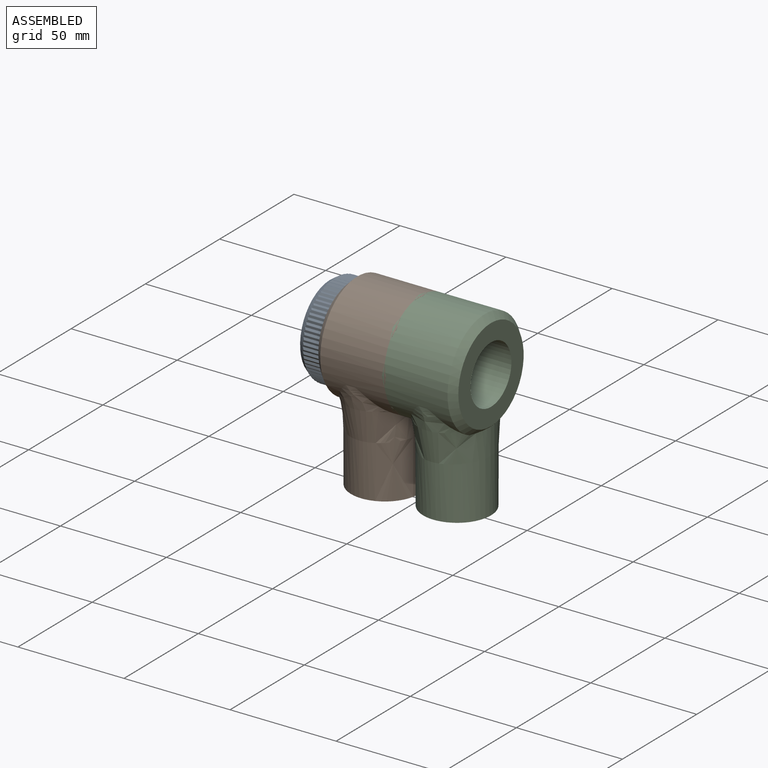
[diagram: assembled view]
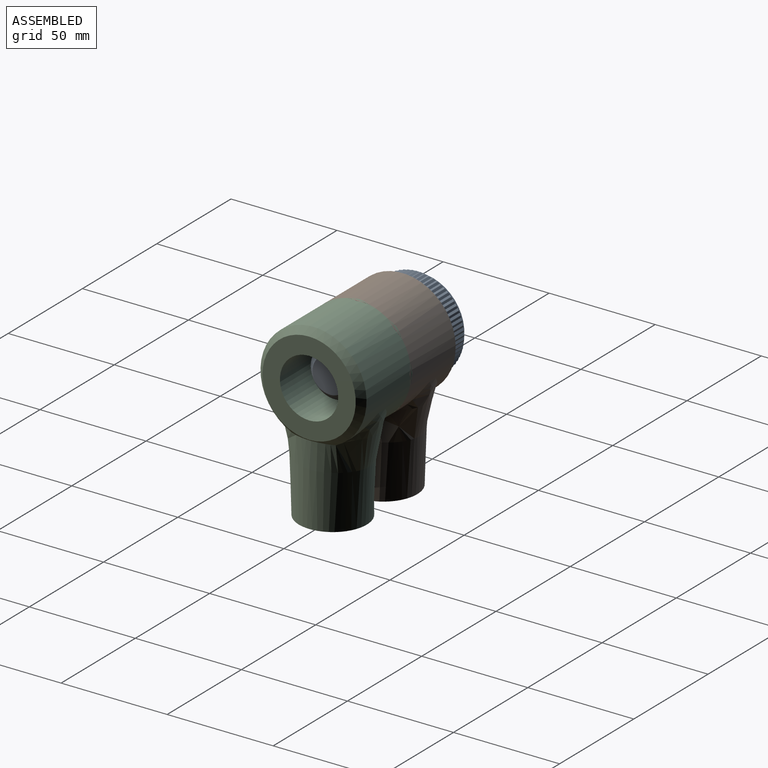
[diagram: assembled view, second angle]
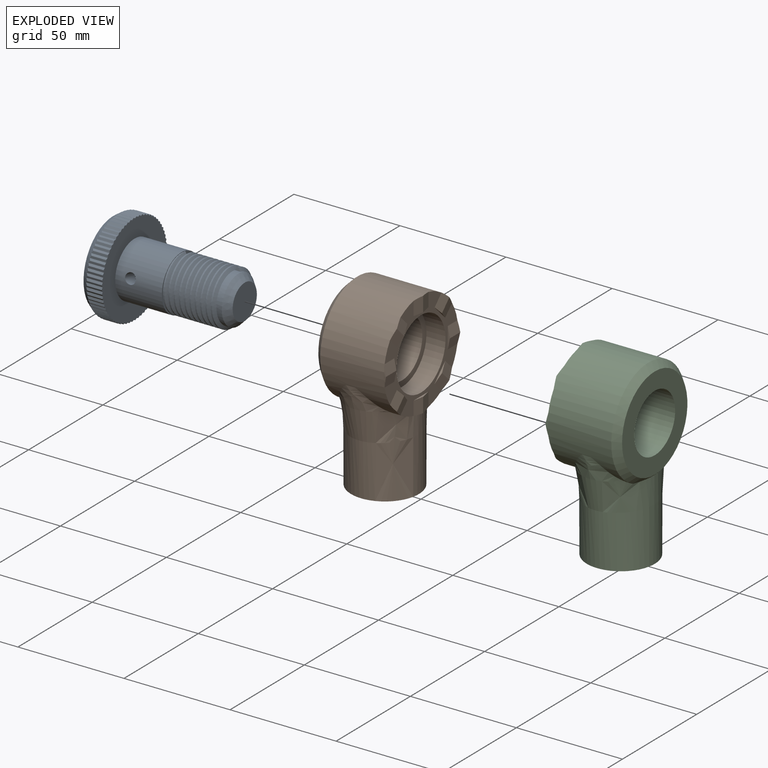
[diagram: exploded view]
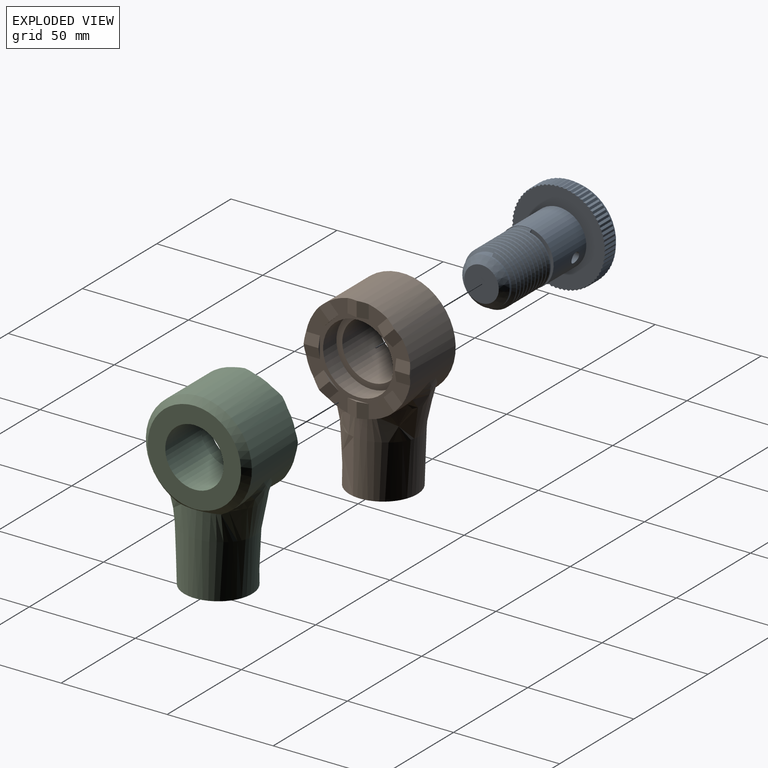
[diagram: exploded view, second angle]
ASSEMBLY  parts=3 mates=2
PART A: 232 faces, bbox 63x45x45 mm
  f0: cylinder r=13mm len=26mm, axis (1,0,0), area 1757.7mm2, adj f223,f224,f230,f231
  f1: cylinder r=6.25mm len=24mm, axis (1,0,0), area 902.3mm2, adj f228,f229,f230,f231
  f2: plane 1.59x1.25mm, normal (0,0,1), area 1.2mm2, adj f4,f6,f17,f224
  f3: bspline ~30.76x26.64mm, area 1329.7mm2, adj f4,f5,f8,f9,f10,f11,f12,f13
  f4: cylinder r=12.75mm len=25.5mm, axis (-1,0,0), area 454mm2, adj f2,f3,f5,f6,f224
  f5: plane 2.49x1.59mm, normal (0,0,-1), area 2.5mm2, adj f3,f4,f6,f7
  f6: bspline ~30.76x26.64mm, area 1376.2mm2, adj f2,f4,f5,f7,f8,f9,f10,f11
  f7: cylinder r=11.16mm len=22.33mm, axis (1,0,0), area 140.6mm2, adj f5,f6,f8,f19
  f8: cylinder r=11.16mm len=22.33mm, axis (1,0,0), area 0.7mm2, adj f3,f6,f7,f9
  f9: cylinder r=11.16mm len=22.33mm, axis (1,0,0), area 0.7mm2, adj f3,f6,f8,f10
  f10: cylinder r=11.16mm len=22.33mm, axis (1,0,0), area 0.8mm2, adj f3,f6,f9,f11
  f11: cylinder r=11.16mm len=22.33mm, axis (1,0,0), area 0.7mm2, adj f3,f6,f10,f12
  f12: cylinder r=11.16mm len=22.33mm, axis (1,0,0), area 0.7mm2, adj f3,f6,f11,f13
  f13: cylinder r=11.16mm len=22.33mm, axis (1,0,0), area 0.6mm2, adj f3,f6,f12,f14
  f14: cylinder r=11.16mm len=22.33mm, axis (1,0,0), area 0.8mm2, adj f3,f6,f13,f15
  f15: cylinder r=11.16mm len=22.33mm, axis (1,0,0), area 0.7mm2, adj f3,f6,f14,f16
  f16: cylinder r=11.16mm len=22.33mm, axis (1,0,0), area 0.7mm2, adj f3,f6,f15,f17
  f17: cylinder r=11.16mm len=22.33mm, axis (1,0,0), area 22.1mm2, adj f2,f3,f16,f224
  f18: plane 16.33x16.33mm, normal (-1,0,0), area 209.4mm2, adj f19
  f19: cone r=11.16mm half-angle=45deg, axis (1,0,0), area 257.6mm2, adj f7,f18
  f20: cylinder r=22mm len=7mm, axis (-1,0,0), area 0.2mm2, adj f21,f223,f225,f227
  f21: plane 7.81x0.97mm, normal (0,0.85,0.53), area 8.3mm2, adj f20,f22,f223,f225
  f22: plane 7.81x1.07mm, normal (0,0.93,-0.36), area 8.3mm2, adj f21,f23,f223,f225
  f23: cylinder r=22mm len=7mm, axis (-1,0,0), area 0.2mm2, adj f22,f24,f223,f225
  f24: plane 7.81x0.91mm, normal (0,0.8,0.6), area 8.3mm2, adj f23,f25,f223,f225
  f25: plane 7.81x1.1mm, normal (0,0.96,-0.28), area 8.3mm2, adj f24,f26,f223,f225
  f26: cylinder r=22mm len=7mm, axis (-1,0,0), area 0.2mm2, adj f25,f27,f223,f225
  f27: plane 7.81x0.85mm, normal (0,0.74,0.67), area 8.3mm2, adj f26,f28,f223,f225
  f28: plane 7.81x1.12mm, normal (0,0.98,-0.19), area 8.3mm2, adj f27,f29,f223,f225
  f29: cylinder r=22mm len=7mm, axis (-1,0,0), area 0.2mm2, adj f28,f30,f223,f225
  f30: plane 7.81x0.85mm, normal (0,0.67,0.74), area 8.3mm2, adj f29,f31,f223,f225
  f31: plane 7.81x1.14mm, normal (0,1,-0.09), area 8.3mm2, adj f30,f32,f223,f225
  f32: cylinder r=22mm len=7mm, axis (-1,0,0), area 0.2mm2, adj f31,f33,f223,f225
  f33: plane 7.81x0.92mm, normal (0,0.6,0.8), area 8.3mm2, adj f32,f34,f223,f225
  f34: plane 7.81x1.14mm, normal (0,1,0), area 8.3mm2, adj f33,f35,f223,f225
  f35: cylinder r=22mm len=7mm, axis (-1,0,0), area 0.2mm2, adj f34,f36,f223,f225
  f36: plane 7.81x0.98mm, normal (0,0.53,0.85), area 8.3mm2, adj f35,f37,f223,f225
  f37: plane 7.81x1.14mm, normal (0,1,0.09), area 8.3mm2, adj f36,f38,f223,f225
  f38: cylinder r=22mm len=7mm, axis (-1,0,0), area 0.2mm2, adj f37,f39,f223,f225
  f39: plane 7.81x1.03mm, normal (0,0.44,0.9), area 8.3mm2, adj f38,f40,f223,f225
  f40: plane 7.81x1.12mm, normal (0,0.98,0.18), area 8.3mm2, adj f39,f41,f223,f225
  f41: cylinder r=22mm len=7mm, axis (-1,0,0), area 0.2mm2, adj f40,f42,f223,f225
  f42: plane 7.81x1.07mm, normal (0,0.36,0.93), area 8.3mm2, adj f41,f43,f223,f225
  f43: plane 7.81x1.1mm, normal (0,0.96,0.27), area 8.3mm2, adj f42,f44,f223,f225
  f44: cylinder r=22mm len=7mm, axis (-1,0,0), area 0.2mm2, adj f43,f45,f223,f225
  f45: plane 7.81x1.1mm, normal (0,0.27,0.96), area 8.3mm2, adj f44,f46,f223,f225
  f46: plane 7.81x1.07mm, normal (0,0.93,0.36), area 8.3mm2, adj f45,f47,f223,f225
  f47: cylinder r=22mm len=7mm, axis (-1,0,0), area 0.2mm2, adj f46,f48,f223,f225
  f48: plane 7.81x1.12mm, normal (0,0.18,0.98), area 8.3mm2, adj f47,f49,f223,f225
  f49: plane 7.81x1.03mm, normal (0,0.9,0.44), area 8.3mm2, adj f48,f50,f223,f225
  f50: cylinder r=22mm len=7mm, axis (-1,0,0), area 0.2mm2, adj f49,f51,f223,f225
  f51: plane 7.81x1.14mm, normal (0,0.09,1), area 8.3mm2, adj f50,f52,f223,f225
  f52: plane 7.81x0.98mm, normal (0,0.85,0.53), area 8.3mm2, adj f51,f53,f223,f225
  f53: cylinder r=22mm len=7mm, axis (-1,0,0), area 0.2mm2, adj f52,f54,f223,f225
  f54: plane 7.81x1.14mm, normal (0,0,1), area 8.3mm2, adj f53,f55,f223,f225
  f55: plane 7.81x0.92mm, normal (0,0.8,0.6), area 8.3mm2, adj f54,f56,f223,f225
  f56: cylinder r=22mm len=7mm, axis (-1,0,0), area 0.2mm2, adj f55,f57,f223,f225
  f57: plane 7.81x1.14mm, normal (0,-0.09,1), area 8.3mm2, adj f56,f58,f223,f225
  f58: plane 7.81x0.85mm, normal (0,0.74,0.67), area 8.3mm2, adj f57,f59,f223,f225
  f59: cylinder r=22mm len=7mm, axis (-1,0,0), area 0.2mm2, adj f58,f60,f223,f225
  f60: plane 7.81x1.12mm, normal (0,-0.19,0.98), area 8.3mm2, adj f59,f61,f223,f225
  f61: plane 7.81x0.85mm, normal (0,0.67,0.74), area 8.3mm2, adj f60,f62,f223,f225
  f62: cylinder r=22mm len=7mm, axis (-1,0,0), area 0.2mm2, adj f61,f63,f223,f225
  f63: plane 7.81x1.1mm, normal (0,-0.28,0.96), area 8.3mm2, adj f62,f64,f223,f225
  f64: plane 7.81x0.91mm, normal (0,0.6,0.8), area 8.3mm2, adj f63,f65,f223,f225
  f65: cylinder r=22mm len=7mm, axis (-1,0,0), area 0.2mm2, adj f64,f66,f223,f225
  f66: plane 7.81x1.07mm, normal (0,-0.36,0.93), area 8.3mm2, adj f65,f67,f223,f225
  f67: plane 7.81x0.97mm, normal (0,0.53,0.85), area 8.3mm2, adj f66,f68,f223,f225
  f68: cylinder r=22mm len=7mm, axis (-1,0,0), area 0.2mm2, adj f67,f69,f223,f225
  f69: plane 7.81x1.02mm, normal (0,-0.45,0.89), area 8.3mm2, adj f68,f70,f223,f225
  f70: plane 7.81x1.02mm, normal (0,0.45,0.89), area 8.3mm2, adj f69,f71,f223,f225
  f71: cylinder r=22mm len=7mm, axis (-1,0,0), area 0.2mm2, adj f70,f72,f223,f225
  f72: plane 7.81x0.97mm, normal (0,-0.53,0.85), area 8.3mm2, adj f71,f73,f223,f225
  f73: plane 7.81x1.07mm, normal (0,0.36,0.93), area 8.3mm2, adj f72,f74,f223,f225
  f74: cylinder r=22mm len=7mm, axis (-1,0,0), area 0.2mm2, adj f73,f75,f223,f225
  f75: plane 7.81x0.91mm, normal (0,-0.6,0.8), area 8.3mm2, adj f74,f76,f223,f225
  f76: plane 7.81x1.1mm, normal (0,0.28,0.96), area 8.3mm2, adj f75,f77,f223,f225
  f77: cylinder r=22mm len=7mm, axis (-1,0,0), area 0.2mm2, adj f76,f78,f223,f225
  f78: plane 7.81x0.85mm, normal (0,-0.67,0.74), area 8.3mm2, adj f77,f79,f223,f225
  f79: plane 7.81x1.12mm, normal (0,0.19,0.98), area 8.3mm2, adj f78,f80,f223,f225
  f80: cylinder r=22mm len=7mm, axis (-1,0,0), area 0.2mm2, adj f79,f81,f223,f225
  f81: plane 7.81x0.85mm, normal (0,-0.74,0.67), area 8.3mm2, adj f80,f82,f223,f225
  f82: plane 7.81x1.14mm, normal (0,0.09,1), area 8.3mm2, adj f81,f83,f223,f225
  f83: cylinder r=22mm len=7mm, axis (-1,0,0), area 0.2mm2, adj f82,f84,f223,f225
  f84: plane 7.81x0.92mm, normal (0,-0.8,0.6), area 8.3mm2, adj f83,f85,f223,f225
  f85: plane 7.81x1.14mm, normal (0,0,1), area 8.3mm2, adj f84,f86,f223,f225
  f86: cylinder r=22mm len=7mm, axis (-1,0,0), area 0.2mm2, adj f85,f87,f223,f225
  f87: plane 7.81x0.98mm, normal (0,-0.85,0.53), area 8.3mm2, adj f86,f88,f223,f225
  f88: plane 7.81x1.14mm, normal (0,-0.09,1), area 8.3mm2, adj f87,f89,f223,f225
  f89: cylinder r=22mm len=7mm, axis (-1,0,0), area 0.2mm2, adj f88,f90,f223,f225
  f90: plane 7.81x1.03mm, normal (0,-0.9,0.44), area 8.3mm2, adj f89,f91,f223,f225
  f91: plane 7.81x1.12mm, normal (0,-0.18,0.98), area 8.3mm2, adj f90,f92,f223,f225
  f92: cylinder r=22mm len=7mm, axis (-1,0,0), area 0.2mm2, adj f91,f93,f223,f225
  f93: plane 7.81x1.07mm, normal (0,-0.93,0.36), area 8.3mm2, adj f92,f94,f223,f225
  f94: plane 7.81x1.1mm, normal (0,-0.27,0.96), area 8.3mm2, adj f93,f95,f223,f225
  f95: cylinder r=22mm len=7mm, axis (-1,0,0), area 0.2mm2, adj f94,f96,f223,f225
  f96: plane 7.81x1.1mm, normal (0,-0.96,0.27), area 8.3mm2, adj f95,f97,f223,f225
  f97: plane 7.81x1.07mm, normal (0,-0.36,0.93), area 8.3mm2, adj f96,f98,f223,f225
  f98: cylinder r=22mm len=7mm, axis (-1,0,0), area 0.2mm2, adj f97,f99,f223,f225
  f99: plane 7.81x1.12mm, normal (0,-0.98,0.18), area 8.3mm2, adj f98,f100,f223,f225
  f100: plane 7.81x1.03mm, normal (0,-0.44,0.9), area 8.3mm2, adj f99,f101,f223,f225
  f101: cylinder r=22mm len=7mm, axis (-1,0,0), area 0.2mm2, adj f100,f102,f223,f225
  f102: plane 7.81x1.14mm, normal (0,-1,0.09), area 8.3mm2, adj f101,f103,f223,f225
  f103: plane 7.81x0.98mm, normal (0,-0.53,0.85), area 8.3mm2, adj f102,f104,f223,f225
  f104: cylinder r=22mm len=7mm, axis (-1,0,0), area 0.2mm2, adj f103,f105,f223,f225
  f105: plane 7.81x1.14mm, normal (0,-1,0), area 8.3mm2, adj f104,f106,f223,f225
  f106: plane 7.81x0.92mm, normal (0,-0.6,0.8), area 8.3mm2, adj f105,f107,f223,f225
  f107: cylinder r=22mm len=7mm, axis (-1,0,0), area 0.2mm2, adj f106,f108,f223,f225
  f108: plane 7.81x1.14mm, normal (0,-1,-0.09), area 8.3mm2, adj f107,f109,f223,f225
  f109: plane 7.81x0.85mm, normal (0,-0.67,0.74), area 8.3mm2, adj f108,f110,f223,f225
  f110: cylinder r=22mm len=7mm, axis (-1,0,0), area 0.2mm2, adj f109,f111,f223,f225
  f111: plane 7.81x1.12mm, normal (0,-0.98,-0.19), area 8.3mm2, adj f110,f112,f223,f225
  f112: plane 7.81x0.85mm, normal (0,-0.74,0.67), area 8.3mm2, adj f111,f113,f223,f225
  f113: cylinder r=22mm len=7mm, axis (-1,0,0), area 0.2mm2, adj f112,f114,f223,f225
  f114: plane 7.81x1.1mm, normal (0,-0.96,-0.28), area 8.3mm2, adj f113,f115,f223,f225
  f115: plane 7.81x0.91mm, normal (0,-0.8,0.6), area 8.3mm2, adj f114,f116,f223,f225
  f116: cylinder r=22mm len=7mm, axis (-1,0,0), area 0.2mm2, adj f115,f117,f223,f225
  f117: plane 7.81x1.07mm, normal (0,-0.93,-0.36), area 8.3mm2, adj f116,f118,f223,f225
  f118: plane 7.81x0.97mm, normal (0,-0.85,0.53), area 8.3mm2, adj f117,f119,f223,f225
  f119: cylinder r=22mm len=7mm, axis (-1,0,0), area 0.2mm2, adj f118,f120,f223,f225
  f120: plane 7.81x1.02mm, normal (0,-0.89,-0.45), area 8.3mm2, adj f119,f121,f223,f225
  f121: plane 7.81x1.02mm, normal (0,-0.89,0.45), area 8.3mm2, adj f120,f122,f223,f225
  f122: cylinder r=22mm len=7mm, axis (-1,0,0), area 0.2mm2, adj f121,f123,f223,f225
  f123: plane 7.81x0.97mm, normal (0,-0.85,-0.53), area 8.3mm2, adj f122,f124,f223,f225
  f124: plane 7.81x1.07mm, normal (0,-0.93,0.36), area 8.3mm2, adj f123,f125,f223,f225
  f125: cylinder r=22mm len=7mm, axis (-1,0,0), area 0.2mm2, adj f124,f126,f223,f225
  f126: plane 7.81x0.91mm, normal (0,-0.8,-0.6), area 8.3mm2, adj f125,f127,f223,f225
  f127: plane 7.81x1.1mm, normal (0,-0.96,0.28), area 8.3mm2, adj f126,f128,f223,f225
  f128: cylinder r=22mm len=7mm, axis (-1,0,0), area 0.2mm2, adj f127,f129,f223,f225
  f129: plane 7.81x0.85mm, normal (0,-0.74,-0.67), area 8.3mm2, adj f128,f130,f223,f225
  f130: plane 7.81x1.12mm, normal (0,-0.98,0.19), area 8.3mm2, adj f129,f131,f223,f225
  f131: cylinder r=22mm len=7mm, axis (-1,0,0), area 0.2mm2, adj f130,f132,f223,f225
  f132: plane 7.81x0.85mm, normal (0,-0.67,-0.74), area 8.3mm2, adj f131,f133,f223,f225
  f133: plane 7.81x1.14mm, normal (0,-1,0.09), area 8.3mm2, adj f132,f134,f223,f225
  f134: cylinder r=22mm len=7mm, axis (-1,0,0), area 0.2mm2, adj f133,f135,f223,f225
  f135: plane 7.81x0.92mm, normal (0,-0.6,-0.8), area 8.3mm2, adj f134,f136,f223,f225
  f136: plane 7.81x1.14mm, normal (0,-1,0), area 8.3mm2, adj f135,f137,f223,f225
  f137: cylinder r=22mm len=7mm, axis (-1,0,0), area 0.2mm2, adj f136,f138,f223,f225
  f138: plane 7.81x0.98mm, normal (0,-0.53,-0.85), area 8.3mm2, adj f137,f139,f223,f225
  f139: plane 7.81x1.14mm, normal (0,-1,-0.09), area 8.3mm2, adj f138,f140,f223,f225
  f140: cylinder r=22mm len=7mm, axis (-1,0,0), area 0.2mm2, adj f139,f141,f223,f225
  f141: plane 7.81x1.03mm, normal (0,-0.44,-0.9), area 8.3mm2, adj f140,f142,f223,f225
  f142: plane 7.81x1.12mm, normal (0,-0.98,-0.18), area 8.3mm2, adj f141,f143,f223,f225
  f143: cylinder r=22mm len=7mm, axis (-1,0,0), area 0.2mm2, adj f142,f144,f223,f225
  f144: plane 7.81x1.07mm, normal (0,-0.36,-0.93), area 8.3mm2, adj f143,f145,f223,f225
  f145: plane 7.81x1.1mm, normal (0,-0.96,-0.27), area 8.3mm2, adj f144,f146,f223,f225
  f146: cylinder r=22mm len=7mm, axis (-1,0,0), area 0.2mm2, adj f145,f147,f223,f225
  f147: plane 7.81x1.1mm, normal (0,-0.27,-0.96), area 8.3mm2, adj f146,f148,f223,f225
  f148: plane 7.81x1.07mm, normal (0,-0.93,-0.36), area 8.3mm2, adj f147,f149,f223,f225
  f149: cylinder r=22mm len=7mm, axis (-1,0,0), area 0.2mm2, adj f148,f150,f223,f225
  f150: plane 7.81x1.12mm, normal (0,-0.18,-0.98), area 8.3mm2, adj f149,f151,f223,f225
  f151: plane 7.81x1.03mm, normal (0,-0.9,-0.44), area 8.3mm2, adj f150,f152,f223,f225
  f152: cylinder r=22mm len=7mm, axis (-1,0,0), area 0.2mm2, adj f151,f153,f223,f225
  f153: plane 7.81x1.14mm, normal (0,-0.09,-1), area 8.3mm2, adj f152,f154,f223,f225
  f154: plane 7.81x0.98mm, normal (0,-0.85,-0.53), area 8.3mm2, adj f153,f155,f223,f225
  f155: cylinder r=22mm len=7mm, axis (-1,0,0), area 0.2mm2, adj f154,f156,f223,f225
  f156: plane 7.81x1.14mm, normal (0,0,-1), area 8.3mm2, adj f155,f157,f223,f225
  f157: plane 7.81x0.92mm, normal (0,-0.8,-0.6), area 8.3mm2, adj f156,f158,f223,f225
  f158: cylinder r=22mm len=7mm, axis (-1,0,0), area 0.2mm2, adj f157,f159,f223,f225
  f159: plane 7.81x1.14mm, normal (0,0.09,-1), area 8.3mm2, adj f158,f160,f223,f225
  f160: plane 7.81x0.85mm, normal (0,-0.74,-0.67), area 8.3mm2, adj f159,f161,f223,f225
  f161: cylinder r=22mm len=7mm, axis (-1,0,0), area 0.2mm2, adj f160,f162,f223,f225
  f162: plane 7.81x1.12mm, normal (0,0.19,-0.98), area 8.3mm2, adj f161,f163,f223,f225
  f163: plane 7.81x0.85mm, normal (0,-0.67,-0.74), area 8.3mm2, adj f162,f164,f223,f225
  f164: cylinder r=22mm len=7mm, axis (-1,0,0), area 0.2mm2, adj f163,f165,f223,f225
  f165: plane 7.81x1.1mm, normal (0,0.28,-0.96), area 8.3mm2, adj f164,f166,f223,f225
  f166: plane 7.81x0.91mm, normal (0,-0.6,-0.8), area 8.3mm2, adj f165,f167,f223,f225
  f167: cylinder r=22mm len=7mm, axis (-1,0,0), area 0.2mm2, adj f166,f168,f223,f225
  f168: plane 7.81x1.07mm, normal (0,0.36,-0.93), area 8.3mm2, adj f167,f169,f223,f225
  f169: plane 7.81x0.97mm, normal (0,-0.53,-0.85), area 8.3mm2, adj f168,f170,f223,f225
  f170: cylinder r=22mm len=7mm, axis (-1,0,0), area 0.2mm2, adj f169,f171,f223,f225
  f171: plane 7.81x1.02mm, normal (0,0.45,-0.89), area 8.3mm2, adj f170,f172,f223,f225
  f172: plane 7.81x1.02mm, normal (0,-0.45,-0.89), area 8.3mm2, adj f171,f173,f223,f225
  f173: cylinder r=22mm len=7mm, axis (-1,0,0), area 0.2mm2, adj f172,f174,f223,f225
  f174: plane 7.81x0.97mm, normal (0,0.53,-0.85), area 8.3mm2, adj f173,f175,f223,f225
  f175: plane 7.81x1.07mm, normal (0,-0.36,-0.93), area 8.3mm2, adj f174,f176,f223,f225
  f176: cylinder r=22mm len=7mm, axis (-1,0,0), area 0.2mm2, adj f175,f177,f223,f225
  f177: plane 7.81x0.91mm, normal (0,0.6,-0.8), area 8.3mm2, adj f176,f178,f223,f225
  f178: plane 7.81x1.1mm, normal (0,-0.28,-0.96), area 8.3mm2, adj f177,f179,f223,f225
  f179: cylinder r=22mm len=7mm, axis (-1,0,0), area 0.2mm2, adj f178,f180,f223,f225
  f180: plane 7.81x0.85mm, normal (0,0.67,-0.74), area 8.3mm2, adj f179,f181,f223,f225
  f181: plane 7.81x1.12mm, normal (0,-0.19,-0.98), area 8.3mm2, adj f180,f182,f223,f225
  f182: cylinder r=22mm len=7mm, axis (-1,0,0), area 0.2mm2, adj f181,f183,f223,f225
  f183: plane 7.81x0.85mm, normal (0,0.74,-0.67), area 8.3mm2, adj f182,f184,f223,f225
  f184: plane 7.81x1.14mm, normal (0,-0.09,-1), area 8.3mm2, adj f183,f185,f223,f225
  f185: cylinder r=22mm len=7mm, axis (-1,0,0), area 0.2mm2, adj f184,f186,f223,f225
  f186: plane 7.81x0.92mm, normal (0,0.8,-0.6), area 8.3mm2, adj f185,f187,f223,f225
  f187: plane 7.81x1.14mm, normal (0,0,-1), area 8.3mm2, adj f186,f188,f223,f225
  f188: cylinder r=22mm len=7mm, axis (-1,0,0), area 0.2mm2, adj f187,f189,f223,f225
  f189: plane 7.81x0.98mm, normal (0,0.85,-0.53), area 8.3mm2, adj f188,f190,f223,f225
  f190: plane 7.81x1.14mm, normal (0,0.09,-1), area 8.3mm2, adj f189,f191,f223,f225
  f191: cylinder r=22mm len=7mm, axis (-1,0,0), area 0.2mm2, adj f190,f192,f223,f225
  f192: plane 7.81x1.03mm, normal (0,0.9,-0.44), area 8.3mm2, adj f191,f193,f223,f225
  f193: plane 7.81x1.12mm, normal (0,0.18,-0.98), area 8.3mm2, adj f192,f194,f223,f225
  f194: cylinder r=22mm len=7mm, axis (-1,0,0), area 0.2mm2, adj f193,f195,f223,f225
  f195: plane 7.81x1.07mm, normal (0,0.93,-0.36), area 8.3mm2, adj f194,f196,f223,f225
  f196: plane 7.81x1.1mm, normal (0,0.27,-0.96), area 8.3mm2, adj f195,f197,f223,f225
  f197: cylinder r=22mm len=7mm, axis (-1,0,0), area 0.2mm2, adj f196,f198,f223,f225
  f198: plane 7.81x1.1mm, normal (0,0.96,-0.27), area 8.3mm2, adj f197,f199,f223,f225
  f199: plane 7.81x1.07mm, normal (0,0.36,-0.93), area 8.3mm2, adj f198,f200,f223,f225
  f200: cylinder r=22mm len=7mm, axis (-1,0,0), area 0.2mm2, adj f199,f201,f223,f225
  f201: plane 7.81x1.12mm, normal (0,0.98,-0.18), area 8.3mm2, adj f200,f202,f223,f225
  f202: plane 7.81x1.03mm, normal (0,0.44,-0.9), area 8.3mm2, adj f201,f203,f223,f225
  f203: cylinder r=22mm len=7mm, axis (-1,0,0), area 0.2mm2, adj f202,f204,f223,f225
  f204: plane 7.81x1.14mm, normal (0,1,-0.09), area 8.3mm2, adj f203,f205,f223,f225
  f205: plane 7.81x0.98mm, normal (0,0.53,-0.85), area 8.3mm2, adj f204,f206,f223,f225
  f206: cylinder r=22mm len=7mm, axis (-1,0,0), area 0.2mm2, adj f205,f207,f223,f225
  f207: plane 7.81x1.14mm, normal (0,1,0), area 8.3mm2, adj f206,f208,f223,f225
  f208: plane 7.81x0.92mm, normal (0,0.6,-0.8), area 8.3mm2, adj f207,f209,f223,f225
  f209: cylinder r=22mm len=7mm, axis (-1,0,0), area 0.2mm2, adj f208,f210,f223,f225
  f210: plane 7.81x1.14mm, normal (0,1,0.09), area 8.3mm2, adj f209,f211,f223,f225
  f211: plane 7.81x0.85mm, normal (0,0.67,-0.74), area 8.3mm2, adj f210,f212,f223,f225
  f212: cylinder r=22mm len=7mm, axis (-1,0,0), area 0.2mm2, adj f211,f213,f223,f225
  f213: plane 7.81x1.12mm, normal (0,0.98,0.19), area 8.3mm2, adj f212,f214,f223,f225
  f214: plane 7.81x0.85mm, normal (0,0.74,-0.67), area 8.3mm2, adj f213,f215,f223,f225
  f215: cylinder r=22mm len=7mm, axis (-1,0,0), area 0.2mm2, adj f214,f216,f223,f225
  f216: plane 7.81x1.1mm, normal (0,0.96,0.28), area 8.3mm2, adj f215,f217,f223,f225
  f217: plane 7.81x0.91mm, normal (0,0.8,-0.6), area 8.3mm2, adj f216,f218,f223,f225
  f218: cylinder r=22mm len=7mm, axis (-1,0,0), area 0.2mm2, adj f217,f219,f223,f225
  f219: plane 7.81x1.07mm, normal (0,0.93,0.36), area 8.3mm2, adj f218,f220,f223,f225
  f220: plane 7.81x0.97mm, normal (0,0.85,-0.53), area 8.3mm2, adj f219,f221,f223,f225
  f221: cylinder r=22mm len=7mm, axis (-1,0,0), area 0.2mm2, adj f220,f223,f225,f226
  f222: plane 40x40mm, normal (1,0,0), area 1091.5mm2, adj f225,f229
  f223: plane 43.95x43.95mm, normal (-1,0,0), area 953.5mm2, adj f0,f20,f21,f22,f23,f24,f25,f26
  f224: plane 26.99x26.99mm, normal (-1,0,0), area 102.4mm2, adj f0,f2,f3,f4,f17
  f225: cone r=20mm half-angle=33.7deg, axis (-1,0,0), area 412.1mm2, adj f20,f21,f22,f23,f24,f25,f26,f27
  f226: plane 7.81x1.02mm, normal (0,0.89,0.45), area 8.3mm2, adj f221,f223,f225,f227
  f227: plane 7.81x1.02mm, normal (0,0.89,-0.45), area 8.3mm2, adj f20,f223,f225,f226
  f228: plane 12.5x12.5mm, normal (1,0,0), area 122.7mm2, adj f1
  f229: cone r=6.25mm half-angle=45deg, axis (1,0,0), area 60mm2, adj f1,f222
  f230: cylinder r=2.5mm len=6.75mm, axis (0,0,-1), area 106mm2, adj f0,f1
  f231: cylinder r=2.5mm len=6.75mm, axis (0,0,-1), area 106mm2, adj f0,f1
PART B: 43 faces, bbox 35x51x86 mm
  f0: extruded ~7.07x7.07mm, area 5mm2, adj f1,f2,f29
  f1: plane 8.49x8.13mm, normal (-0.98,0.14,0.14), area 34.8mm2, adj f0,f2,f3,f28
  f2: plane 8.49x8.13mm, normal (-0.98,-0.14,-0.14), area 34.8mm2, adj f0,f1,f3,f28
  f3: plane 7.07x7.07mm, normal (0,0.71,-0.71), area 5mm2, adj f1,f2,f28
  f4: extruded ~10x1mm, area 5mm2, adj f5,f6,f29
  f5: plane 7.01x5.01mm, normal (-0.98,0.2,0), area 34.8mm2, adj f4,f6,f7,f28
  f6: plane 7.01x5.01mm, normal (-0.98,-0.2,0), area 34.8mm2, adj f4,f5,f7,f28
  f7: plane 10x1mm, normal (0,0,-1), area 5mm2, adj f5,f6,f28
  f8: extruded ~7.07x7.07mm, area 5mm2, adj f9,f10,f29
  f9: plane 8.49x8.13mm, normal (-0.98,0.14,-0.14), area 34.8mm2, adj f8,f10,f11,f28
  f10: plane 8.49x8.13mm, normal (-0.98,-0.14,0.14), area 34.8mm2, adj f8,f9,f11,f28
  f11: plane 7.07x7.07mm, normal (0,-0.71,-0.71), area 5mm2, adj f9,f10,f28
  f12: extruded ~10x1mm, area 5mm2, adj f13,f14,f29
  f13: plane 7.01x5.01mm, normal (-0.98,0,-0.2), area 34.8mm2, adj f12,f14,f15,f28
  f14: plane 7.01x5.01mm, normal (-0.98,0,0.2), area 34.8mm2, adj f12,f13,f15,f28
  f15: plane 10x1mm, normal (0,-1,0), area 5mm2, adj f13,f14,f28
  f16: extruded ~7.07x7.07mm, area 5mm2, adj f17,f18,f29
  f17: plane 8.49x8.13mm, normal (-0.98,-0.14,-0.14), area 34.8mm2, adj f16,f18,f19,f28
  f18: plane 8.49x8.13mm, normal (-0.98,0.14,0.14), area 34.8mm2, adj f16,f17,f19,f28
  f19: plane 7.07x7.07mm, normal (0,-0.71,0.71), area 5mm2, adj f17,f18,f28
  f20: extruded ~10x1mm, area 5mm2, adj f21,f22,f29
  f21: plane 7.01x5.01mm, normal (-0.98,-0.2,0), area 34.8mm2, adj f20,f22,f23,f28
  f22: plane 7.01x5.01mm, normal (-0.98,0.2,0), area 34.8mm2, adj f20,f21,f23,f28
  f23: plane 10x1mm, normal (0,0,1), area 5mm2, adj f21,f22,f28
  f24: extruded ~7.07x7.07mm, area 5mm2, adj f25,f26,f29
  f25: plane 8.49x8.13mm, normal (-0.98,-0.14,0.14), area 34.8mm2, adj f24,f26,f27,f28
  f26: plane 8.49x8.13mm, normal (-0.98,0.14,-0.14), area 34.8mm2, adj f24,f25,f27,f28
  f27: plane 7.07x7.07mm, normal (0,0.71,0.71), area 5mm2, adj f25,f26,f28
  f28: plane 48.99x48.99mm, normal (-1,0,0), area 561.6mm2, adj f1,f2,f3,f5,f6,f7,f9,f10
  f29: cylinder r=25mm len=50mm, axis (-1,0,0), area 3468mm2, adj f0,f4,f8,f12,f16,f20,f24,f28
  f30: plane 44x44mm, normal (1,0,0), area 926.6mm2, adj f33,f42
  f31: bspline ~51.49x46.75mm, area 4323.7mm2, adj f29,f32,f33
  f32: plane 32.98x32.98mm, normal (0,0,1), area 464.4mm2, adj f31,f38
  f33: cone r=22mm half-angle=45deg, axis (-1,0,0), area 577.6mm2, adj f29,f30,f31
  f34: plane 7.01x5.01mm, normal (-0.98,0,0.2), area 34.8mm2, adj f28,f35,f36,f37
  f35: plane 7.01x5.01mm, normal (-0.98,0,-0.2), area 34.8mm2, adj f28,f34,f36,f37
  f36: plane 10x1mm, normal (0,1,0), area 5mm2, adj f28,f34,f35
  f37: extruded ~10x1mm, area 5mm2, adj f29,f34,f35
  f38: cylinder r=10.4mm len=30mm, axis (0,0,1), area 1960.4mm2, adj f32,f39
  f39: plane 20.8x20.8mm, normal (0,0,1), area 339.8mm2, adj f38
  f40: cylinder r=16.5mm len=33mm, axis (-1,0,0), area 933.1mm2, adj f28,f41
  f41: plane 33x33mm, normal (-1,0,0), area 261.3mm2, adj f40,f42
  f42: cylinder r=13.75mm len=27.5mm, axis (-1,0,0), area 2073.5mm2, adj f30,f41
PART C: same geometry as B
PLACE A rot(axis=(0,-0.78,-0.63),180deg) t=(0,0,1.4)mm
PLACE B rot(axis=(0,1,0),180deg) t=(0,0,1.4)mm fixed
PLACE C rot(axis=(1,0,0),180deg) t=(0,0,1.4)mm
MATE revolute A.f20 <-> B.f29  axis (1,0,0) through (-33,0,1.4)mm
MATE revolute B.f29 <-> C.f29  axis (1,0,0) through (0,0,1.4)mm
